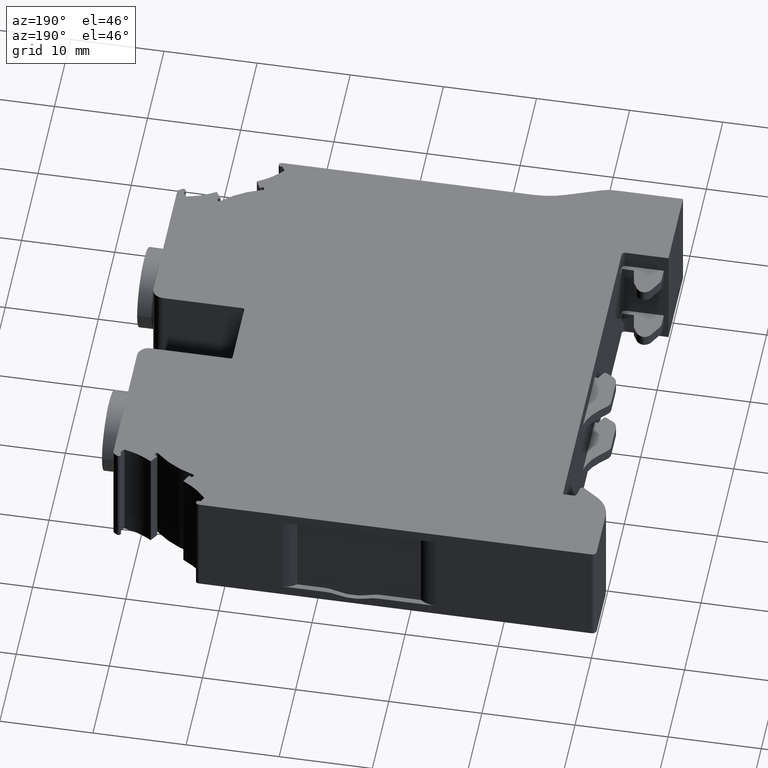
[diagram: clean part render]
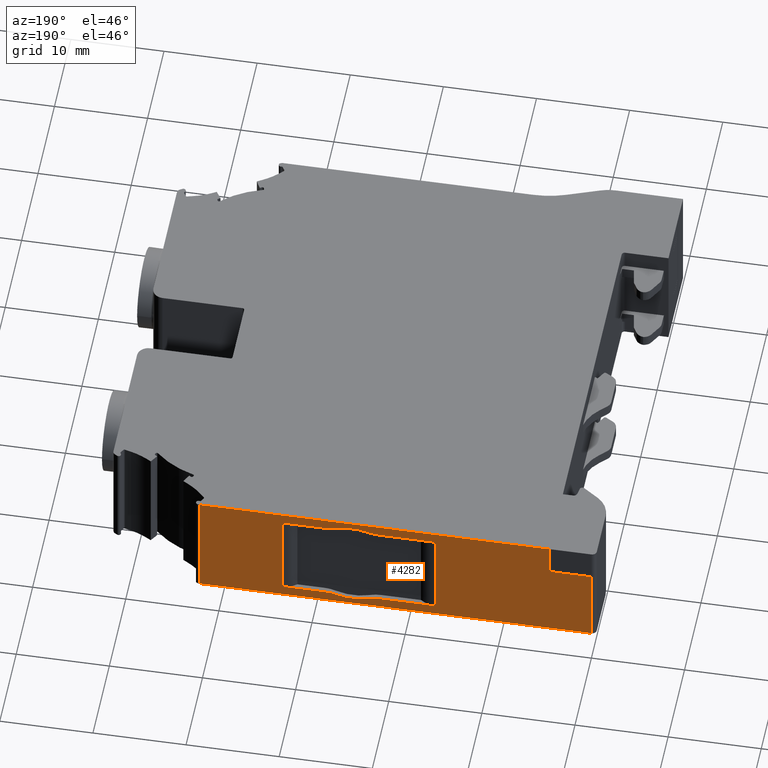
[diagram: same view with one face highlighted and labeled with its STEP entity id]
A machine part, auxiliary view. The second image highlights one B-rep face of the part: STEP entity #4282.
In plain terms, the highlighted planar face has unit normal (-0, 1, 0).
Its self-contained STEP definition (entity closure, byte-faithful):
#351 = EDGE_LOOP ( 'NONE', ( #6060, #12717, #9504, #16997, #3559, #16676, #1711, #15994, #1917, #5657, #6246, #15350 ) ) ;
#429 = FACE_BOUND ( 'NONE', #351, .T. ) ;
#483 = DIRECTION ( 'NONE',  ( 0.9999999999996291855, -8.611274224165934097E-07, 0.000000000000000000 ) ) ;
#582 = CARTESIAN_POINT ( 'NONE',  ( 542.2939590345379202, -27.64749187718276957, -52.43229426146053385 ) ) ;
#591 = EDGE_CURVE ( 'NONE', #4584, #11243, #4270, .T. ) ;
#699 = AXIS2_PLACEMENT_3D ( 'NONE', #8784, #9977, #1776 ) ;
#781 = ORIENTED_EDGE ( 'NONE', *, *, #7732, .F. ) ;
#807 = VERTEX_POINT ( 'NONE', #16458 ) ;
#814 = B_SPLINE_CURVE_WITH_KNOTS ( 'NONE', 3,
 ( #7373, #10176, #10272, #7206, #16882, #7799 ),
 .UNSPECIFIED., .F., .F.,
 ( 4, 2, 4 ),
 ( 0.001018508108094975028, 0.001618244404982560093, 0.002217980701870145375 ),
 .UNSPECIFIED. ) ;
#935 = CARTESIAN_POINT ( 'NONE',  ( 560.3702532324019785, -27.64749187757664828, -62.30552114539676722 ) ) ;
#1033 = CARTESIAN_POINT ( 'NONE',  ( 518.2671712074899233, -27.64748799854111994, 23.51836098756414373 ) ) ;
#1048 = EDGE_CURVE ( 'NONE', #807, #14400, #5246, .T. ) ;
#1096 = DIRECTION ( 'NONE',  ( 0.9999999999999856781, 1.215150861509693678E-15, -1.693843193768084786E-07 ) ) ;
#1305 = LINE ( 'NONE', #1033, #8569 ) ;
#1310 = EDGE_CURVE ( 'NONE', #9613, #11510, #814, .T. ) ;
#1398 = EDGE_CURVE ( 'NONE', #13664, #15126, #9246, .T. ) ;
#1459 = EDGE_CURVE ( 'NONE', #1958, #11510, #16388, .T. ) ;
#1711 = ORIENTED_EDGE ( 'NONE', *, *, #2181, .F. ) ;
#1715 = DIRECTION ( 'NONE',  ( -4.089659118476204995E-14, -1.077303488295632091E-12, 1.000000000000000000 ) ) ;
#1776 = DIRECTION ( 'NONE',  ( 1.000000000000000000, 1.214968383147515958E-15, 4.089659118476334999E-14 ) ) ;
#1917 = ORIENTED_EDGE ( 'NONE', *, *, #6890, .F. ) ;
#1934 = VECTOR ( 'NONE', #1096, 1000.000000000000114 ) ;
#1958 = VERTEX_POINT ( 'NONE', #13747 ) ;
#2181 = EDGE_CURVE ( 'NONE', #9804, #2870, #10039, .T. ) ;
#2579 = CARTESIAN_POINT ( 'NONE',  ( 541.1089450043858733, -27.64749187757708881, -62.30552440796131464 ) ) ;
#2629 = CARTESIAN_POINT ( 'NONE',  ( 546.8078136530094753, -27.64749187718227930, -52.62704604856435253 ) ) ;
#2670 = EDGE_CURVE ( 'NONE', #17302, #9613, #13335, .T. ) ;
#2766 = EDGE_CURVE ( 'NONE', #4493, #4584, #17580, .T. ) ;
#2848 = CARTESIAN_POINT ( 'NONE',  ( 545.6227980951099426, -27.64749187757698934, -62.50027486753295847 ) ) ;
#2859 = CARTESIAN_POINT ( 'NONE',  ( 522.7671629080360844, -27.64749187360682470, -54.86638554725213623 ) ) ;
#2864 = ORIENTED_EDGE ( 'NONE', *, *, #15192, .F. ) ;
#2870 = VERTEX_POINT ( 'NONE', #15241 ) ;
#3065 = CARTESIAN_POINT ( 'NONE',  ( 546.8078136529901485, -27.64749187757694315, -62.30552344266217801 ) ) ;
#3077 = CARTESIAN_POINT ( 'NONE',  ( 552.0431360607091165, -27.64748849852061596, -63.46407265014232735 ) ) ;
#3168 = DIRECTION ( 'NONE',  ( -5.259174814796429931E-14, -1.077303488295632091E-12, 1.000000000000000000 ) ) ;
#3341 = CIRCLE ( 'NONE', #6787, 5.299999898250251640 ) ;
#3424 = CARTESIAN_POINT ( 'NONE',  ( 546.4087285664024876, -27.64749187718214785, -52.62704598096556197 ) ) ;
#3559 = ORIENTED_EDGE ( 'NONE', *, *, #3602, .T. ) ;
#3602 = EDGE_CURVE ( 'NONE', #11237, #3910, #13302, .T. ) ;
#3697 = ORIENTED_EDGE ( 'NONE', *, *, #1398, .T. ) ;
#3707 = CARTESIAN_POINT ( 'NONE',  ( 560.3702532324019785, -27.64749187757664828, -62.30552114539676722 ) ) ;
#3910 = VERTEX_POINT ( 'NONE', #3065 ) ;
#4018 = CARTESIAN_POINT ( 'NONE',  ( 541.3107627885927968, -27.64749187757694315, -62.30552437377649255 ) ) ;
#4104 = DIRECTION ( 'NONE',  ( 0.9999999999999856781, 1.215150861509693678E-15, -1.693843193768084786E-07 ) ) ;
#4123 = VERTEX_POINT ( 'NONE', #6192 ) ;
#4270 = B_SPLINE_CURVE_WITH_KNOTS ( 'NONE', 3,
 ( #2579, #4018, #12117, #7967, #7776, #9318 ),
 .UNSPECIFIED., .F., .F.,
 ( 4, 2, 4 ),
 ( 0.001018508108096101514, 0.001618244404983645813, 0.002217980701871190112 ),
 .UNSPECIFIED. ) ;
#4282 = ADVANCED_FACE ( 'NONE', ( #15573, #429 ), #11234, .T. ) ;
#4493 = VERTEX_POINT ( 'NONE', #10493 ) ;
#4532 = EDGE_CURVE ( 'NONE', #17066, #13664, #8062, .T. ) ;
#4540 = DIRECTION ( 'NONE',  ( 0.9999999999996292965, -8.611274224165935156E-07, 0.000000000000000000 ) ) ;
#4584 = VERTEX_POINT ( 'NONE', #9512 ) ;
#4626 = EDGE_CURVE ( 'NONE', #7627, #9804, #5276, .T. ) ;
#4746 = VECTOR ( 'NONE', #5017, 1000.000000000000000 ) ;
#4948 = VECTOR ( 'NONE', #1715, 1000.000000000000000 ) ;
#5017 = DIRECTION ( 'NONE',  ( -1.706662860027260475E-28, 6.982966722218760189E-15, -1.000000000000000000 ) ) ;
#5242 = VERTEX_POINT ( 'NONE', #10366 ) ;
#5246 = LINE ( 'NONE', #16262, #15017 ) ;
#5276 = LINE ( 'NONE', #10939, #5358 ) ;
#5358 = VECTOR ( 'NONE', #4104, 1000.000000000000114 ) ;
#5424 = CARTESIAN_POINT ( 'NONE',  ( 534.7117357780579141, -27.64748849852061596, -63.46407265014232735 ) ) ;
#5657 = ORIENTED_EDGE ( 'NONE', *, *, #1459, .T. ) ;
#5966 = CARTESIAN_POINT ( 'NONE',  ( 518.2671712074899233, -27.64748799854051242, -63.46407265014232735 ) ) ;
#6054 = CARTESIAN_POINT ( 'NONE',  ( 551.4218068127016750, -27.64749187717730194, -57.46628474562327682 ) ) ;
#6060 = ORIENTED_EDGE ( 'NONE', *, *, #9087, .F. ) ;
#6116 = CARTESIAN_POINT ( 'NONE',  ( 534.9837058610631857, -27.64749187718276957, -52.62704440149166629 ) ) ;
#6192 = CARTESIAN_POINT ( 'NONE',  ( 518.2671712074899233, -27.64748799854051242, -63.46407265014232735 ) ) ;
#6236 = CARTESIAN_POINT ( 'NONE',  ( 546.8078136529901485, -27.64749187757694315, -62.30552344266217801 ) ) ;
#6246 = ORIENTED_EDGE ( 'NONE', *, *, #1310, .F. ) ;
#6449 = DIRECTION ( 'NONE',  ( 1.214968383191579954E-15, -1.000000000000000000, -1.077303488295632091E-12 ) ) ;
#6488 = VECTOR ( 'NONE', #4540, 999.9999999999998863 ) ;
#6543 = DIRECTION ( 'NONE',  ( 0.9999999999999179545, -4.053131754584584858E-07, 4.089615453946092017E-14 ) ) ;
#6716 = ORIENTED_EDGE ( 'NONE', *, *, #10525, .F. ) ;
#6787 = AXIS2_PLACEMENT_3D ( 'NONE', #16982, #10109, #15624 ) ;
#6879 = CARTESIAN_POINT ( 'NONE',  ( 522.7671629080391540, -27.64749187360684957, -51.46849684108529033 ) ) ;
#6890 = EDGE_CURVE ( 'NONE', #1958, #7627, #7466, .T. ) ;
#7053 = VECTOR ( 'NONE', #8049, 1000.000000000000114 ) ;
#7206 = CARTESIAN_POINT ( 'NONE',  ( 541.9071575862002419, -27.64749187718224022, -52.54417342458825857 ) ) ;
#7211 = EDGE_CURVE ( 'NONE', #5242, #4123, #1305, .T. ) ;
#7373 = CARTESIAN_POINT ( 'NONE',  ( 541.1089450044062232, -27.64749187718276957, -52.62704508326542197 ) ) ;
#7466 = B_SPLINE_CURVE_WITH_KNOTS ( 'NONE', 3,
 ( #13145, #10086, #3424, #8909 ),
 .UNSPECIFIED., .F., .F.,
 ( 4, 4 ),
 ( 0.0007672435993325277519, 0.001967262928143356879 ),
 .UNSPECIFIED. ) ;
#7618 = CARTESIAN_POINT ( 'NONE',  ( 541.1089450044062232, -27.64749187718276957, -52.62704508326542197 ) ) ;
#7627 = VERTEX_POINT ( 'NONE', #2629 ) ;
#7714 = LINE ( 'NONE', #11860, #4746 ) ;
#7732 = EDGE_CURVE ( 'NONE', #14400, #8238, #17772, .T. ) ;
#7776 = CARTESIAN_POINT ( 'NONE',  ( 542.1019000752052079, -27.64749187757692894, -62.43674683496933397 ) ) ;
#7799 = CARTESIAN_POINT ( 'NONE',  ( 542.2939590345379202, -27.64749187718276957, -52.43229426146053385 ) ) ;
#7967 = CARTESIAN_POINT ( 'NONE',  ( 541.9071575861798920, -27.64749187757692539, -62.38839606663834303 ) ) ;
#8049 = DIRECTION ( 'NONE',  ( 0.9999999999999856781, 1.518089255576064412E-14, 1.693843602733999864E-07 ) ) ;
#8052 = DIRECTION ( 'NONE',  ( -1.706662860027260475E-28, 6.982966722218760189E-15, -1.000000000000000000 ) ) ;
#8062 = LINE ( 'NONE', #6879, #13418 ) ;
#8166 = VECTOR ( 'NONE', #3168, 1000.000000000000000 ) ;
#8238 = VERTEX_POINT ( 'NONE', #13106 ) ;
#8306 = ORIENTED_EDGE ( 'NONE', *, *, #9645, .F. ) ;
#8311 = CARTESIAN_POINT ( 'NONE',  ( 560.3702414055196641, -27.64749187360620652, -51.46849684108375556 ) ) ;
#8569 = VECTOR ( 'NONE', #8052, 1000.000000000000000 ) ;
#8666 = DIRECTION ( 'NONE',  ( 2.044836235049679975E-14, 1.077303488295632091E-12, -1.000000000000000000 ) ) ;
#8784 = CARTESIAN_POINT ( 'NONE',  ( 560.3702414055479721, -27.64749187710691203, -122.4497651404149821 ) ) ;
#8909 = CARTESIAN_POINT ( 'NONE',  ( 546.8078136530094753, -27.64749187718227930, -52.62704604856435253 ) ) ;
#9087 = EDGE_CURVE ( 'NONE', #4493, #17302, #11715, .T. ) ;
#9246 = LINE ( 'NONE', #16312, #17522 ) ;
#9318 = CARTESIAN_POINT ( 'NONE',  ( 542.2939590345174565, -27.64749187757708881, -62.50027522976639460 ) ) ;
#9504 = ORIENTED_EDGE ( 'NONE', *, *, #591, .T. ) ;
#9512 = CARTESIAN_POINT ( 'NONE',  ( 541.1089450043858733, -27.64749187757708881, -62.30552440796131464 ) ) ;
#9526 = DIRECTION ( 'NONE',  ( 1.000000000000000000, 1.309225290022749404E-15, 4.058598399070523468E-14 ) ) ;
#9613 = VERTEX_POINT ( 'NONE', #7618 ) ;
#9645 = EDGE_CURVE ( 'NONE', #17066, #17523, #7714, .T. ) ;
#9804 = VERTEX_POINT ( 'NONE', #15121 ) ;
#9977 = DIRECTION ( 'NONE',  ( -1.214968383191574037E-15, 1.000000000000000000, 1.077303488295632091E-12 ) ) ;
#10032 = LINE ( 'NONE', #5966, #11963 ) ;
#10039 = LINE ( 'NONE', #6054, #10910 ) ;
#10086 = CARTESIAN_POINT ( 'NONE',  ( 546.0026347449047535, -27.64749187718222245, -52.55793536623059481 ) ) ;
#10109 = DIRECTION ( 'NONE',  ( -1.518089373856619932E-14, 1.000000000000000000, 6.982966722218760189E-15 ) ) ;
#10116 = CARTESIAN_POINT ( 'NONE',  ( 546.0026347448839488, -27.64749187757687210, -62.37463412499560178 ) ) ;
#10176 = CARTESIAN_POINT ( 'NONE',  ( 541.3107627886134878, -27.64749187718214785, -52.62704511745018010 ) ) ;
#10204 = CARTESIAN_POINT ( 'NONE',  ( 545.6227980951099426, -27.64749187757698934, -62.50027486753295847 ) ) ;
#10272 = CARTESIAN_POINT ( 'NONE',  ( 541.5121741809070954, -27.64749187718217982, -52.60977671239209741 ) ) ;
#10366 = CARTESIAN_POINT ( 'NONE',  ( 518.2671712074899233, -27.64748799854057282, -54.86638554725213623 ) ) ;
#10493 = CARTESIAN_POINT ( 'NONE',  ( 534.9837058610428357, -27.64749187757723803, -62.30552544548107363 ) ) ;
#10525 = EDGE_CURVE ( 'NONE', #8238, #15126, #16768, .T. ) ;
#10597 = CARTESIAN_POINT ( 'NONE',  ( 543.9583780172843035, -27.64749187717730194, -57.46416353354281625 ) ) ;
#10621 = CARTESIAN_POINT ( 'NONE',  ( 560.3702532324214189, -27.64749187718227930, -52.62704834582898172 ) ) ;
#10910 = VECTOR ( 'NONE', #8666, 1000.000000000000000 ) ;
#10939 = CARTESIAN_POINT ( 'NONE',  ( 560.3702532324214189, -27.64749187718227930, -52.62704834582898172 ) ) ;
#11083 = DIRECTION ( 'NONE',  ( 0.9999999999999179545, -4.053131754584585388E-07, 0.000000000000000000 ) ) ;
#11234 = PLANE ( 'NONE',  #699 ) ;
#11237 = VERTEX_POINT ( 'NONE', #2848 ) ;
#11243 = VERTEX_POINT ( 'NONE', #16468 ) ;
#11510 = VERTEX_POINT ( 'NONE', #582 ) ;
#11715 = LINE ( 'NONE', #6116, #8166 ) ;
#11753 = VECTOR ( 'NONE', #11083, 999.9999999999998863 ) ;
#11860 = CARTESIAN_POINT ( 'NONE',  ( 522.7671629080360844, -27.64749187360737537, 23.51836098756414373 ) ) ;
#11963 = VECTOR ( 'NONE', #483, 1000.000000000000114 ) ;
#12117 = CARTESIAN_POINT ( 'NONE',  ( 541.5121741808869729, -27.64749187757694315, -62.32279277883453972 ) ) ;
#12601 = ORIENTED_EDGE ( 'NONE', *, *, #15275, .T. ) ;
#12717 = ORIENTED_EDGE ( 'NONE', *, *, #2766, .T. ) ;
#12825 = EDGE_CURVE ( 'NONE', #3910, #2870, #16096, .T. ) ;
#13083 = LINE ( 'NONE', #16901, #6488 ) ;
#13106 = CARTESIAN_POINT ( 'NONE',  ( 560.3702414055196641, -27.64749187360618166, -63.46407265014232735 ) ) ;
#13145 = CARTESIAN_POINT ( 'NONE',  ( 545.6227980951312020, -27.64749187718276957, -52.43229462369338734 ) ) ;
#13302 = B_SPLINE_CURVE_WITH_KNOTS ( 'NONE', 3,
 ( #10204, #10116, #14440, #6236 ),
 .UNSPECIFIED., .F., .F.,
 ( 4, 4 ),
 ( 0.0007672435993317290202, 0.001967262928144550369 ),
 .UNSPECIFIED. ) ;
#13335 = LINE ( 'NONE', #10621, #1934 ) ;
#13390 = ORIENTED_EDGE ( 'NONE', *, *, #7211, .F. ) ;
#13418 = VECTOR ( 'NONE', #15018, 1000.000000000000000 ) ;
#13664 = VERTEX_POINT ( 'NONE', #16471 ) ;
#13747 = CARTESIAN_POINT ( 'NONE',  ( 545.6227980951312020, -27.64749187718276957, -52.43229462369338734 ) ) ;
#13866 = EDGE_LOOP ( 'NONE', ( #15947, #2864, #13390, #12601, #8306, #15600, #3697, #6716, #781 ) ) ;
#14052 = CARTESIAN_POINT ( 'NONE',  ( 560.3702414055479721, -27.64749187710691203, -122.4497651404149821 ) ) ;
#14400 = VERTEX_POINT ( 'NONE', #5424 ) ;
#14440 = CARTESIAN_POINT ( 'NONE',  ( 546.4087285663825924, -27.64749187757686499, -62.30552351026062041 ) ) ;
#14510 = DIRECTION ( 'NONE',  ( 0.9999999999999856781, 1.518089255576064412E-14, 1.693843602733999864E-07 ) ) ;
#14894 = VECTOR ( 'NONE', #14510, 1000.000000000000114 ) ;
#15017 = VECTOR ( 'NONE', #17512, 1000.000000000000000 ) ;
#15018 = DIRECTION ( 'NONE',  ( 0.9999999999999601430, 2.825623141368939049E-07, 4.089689559012710127E-14 ) ) ;
#15121 = CARTESIAN_POINT ( 'NONE',  ( 551.4218068127016750, -27.64749187718227930, -52.62704683010291973 ) ) ;
#15126 = VERTEX_POINT ( 'NONE', #8311 ) ;
#15192 = EDGE_CURVE ( 'NONE', #4123, #807, #10032, .T. ) ;
#15241 = CARTESIAN_POINT ( 'NONE',  ( 551.4218068126803018, -27.64749187757684012, -62.30552266112361082 ) ) ;
#15275 = EDGE_CURVE ( 'NONE', #5242, #17523, #13083, .T. ) ;
#15306 = EDGE_CURVE ( 'NONE', #11237, #11243, #3341, .T. ) ;
#15315 = CARTESIAN_POINT ( 'NONE',  ( 522.7671629080360844, -27.64749187360684957, -51.46849684108528322 ) ) ;
#15350 = ORIENTED_EDGE ( 'NONE', *, *, #2670, .F. ) ;
#15573 = FACE_OUTER_BOUND ( 'NONE', #13866, .T. ) ;
#15600 = ORIENTED_EDGE ( 'NONE', *, *, #4532, .T. ) ;
#15624 = DIRECTION ( 'NONE',  ( 1.000000000000000000, 1.505609083526161972E-14, 0.000000000000000000 ) ) ;
#15675 = CARTESIAN_POINT ( 'NONE',  ( 534.9837058610631857, -27.64749187718276957, -52.62704404574623851 ) ) ;
#15947 = ORIENTED_EDGE ( 'NONE', *, *, #1048, .F. ) ;
#15994 = ORIENTED_EDGE ( 'NONE', *, *, #4626, .F. ) ;
#16096 = LINE ( 'NONE', #935, #7053 ) ;
#16262 = CARTESIAN_POINT ( 'NONE',  ( 522.7671629080360844, -27.64749187360676785, -63.46407265014232735 ) ) ;
#16312 = CARTESIAN_POINT ( 'NONE',  ( 552.0431360607121860, -27.64748849852069768, -51.46849684108409662 ) ) ;
#16388 = CIRCLE ( 'NONE', #16957, 5.299999898250251640 ) ;
#16458 = CARTESIAN_POINT ( 'NONE',  ( 522.7671629080360844, -27.64749187360676785, -63.46407265014232735 ) ) ;
#16468 = CARTESIAN_POINT ( 'NONE',  ( 542.2939590345174565, -27.64749187757708881, -62.50027522976639460 ) ) ;
#16471 = CARTESIAN_POINT ( 'NONE',  ( 534.7117357780579141, -27.64748849852069768, -51.46849684108480005 ) ) ;
#16676 = ORIENTED_EDGE ( 'NONE', *, *, #12825, .T. ) ;
#16768 = LINE ( 'NONE', #14052, #4948 ) ;
#16882 = CARTESIAN_POINT ( 'NONE',  ( 542.1019000752256716, -27.64749187718229706, -52.49582265625741684 ) ) ;
#16901 = CARTESIAN_POINT ( 'NONE',  ( 518.2671712074899233, -27.64748799854057282, -54.86638554725213623 ) ) ;
#16957 = AXIS2_PLACEMENT_3D ( 'NONE', #10597, #6449, #9526 ) ;
#16982 = CARTESIAN_POINT ( 'NONE',  ( 543.9583780172630441, -27.64749187757704263, -57.46840595768370719 ) ) ;
#16997 = ORIENTED_EDGE ( 'NONE', *, *, #15306, .F. ) ;
#17066 = VERTEX_POINT ( 'NONE', #15315 ) ;
#17302 = VERTEX_POINT ( 'NONE', #15675 ) ;
#17512 = DIRECTION ( 'NONE',  ( 0.9999999999999601430, 2.825623141368939049E-07, 0.000000000000000000 ) ) ;
#17522 = VECTOR ( 'NONE', #6543, 999.9999999999998863 ) ;
#17523 = VERTEX_POINT ( 'NONE', #2859 ) ;
#17580 = LINE ( 'NONE', #3707, #14894 ) ;
#17772 = LINE ( 'NONE', #3077, #11753 ) ;